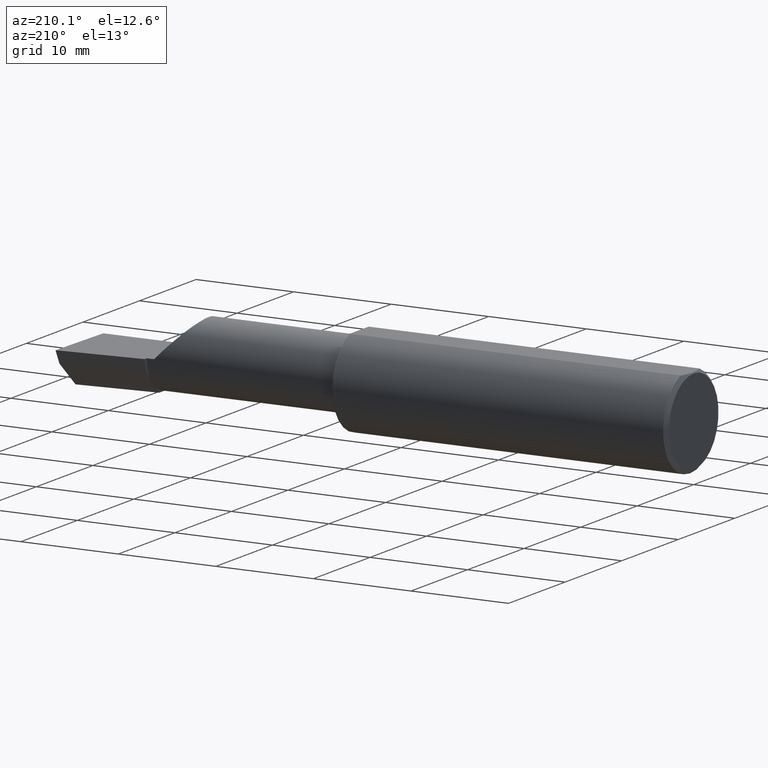
[diagram: clean part render]
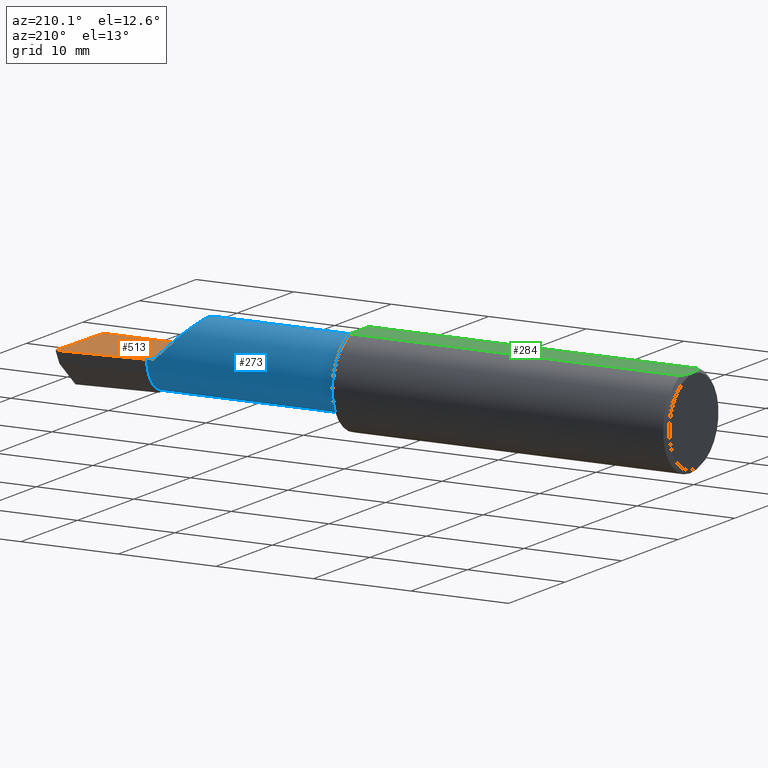
[diagram: same view with three faces highlighted in distinct colors, each labeled with its STEP entity id]
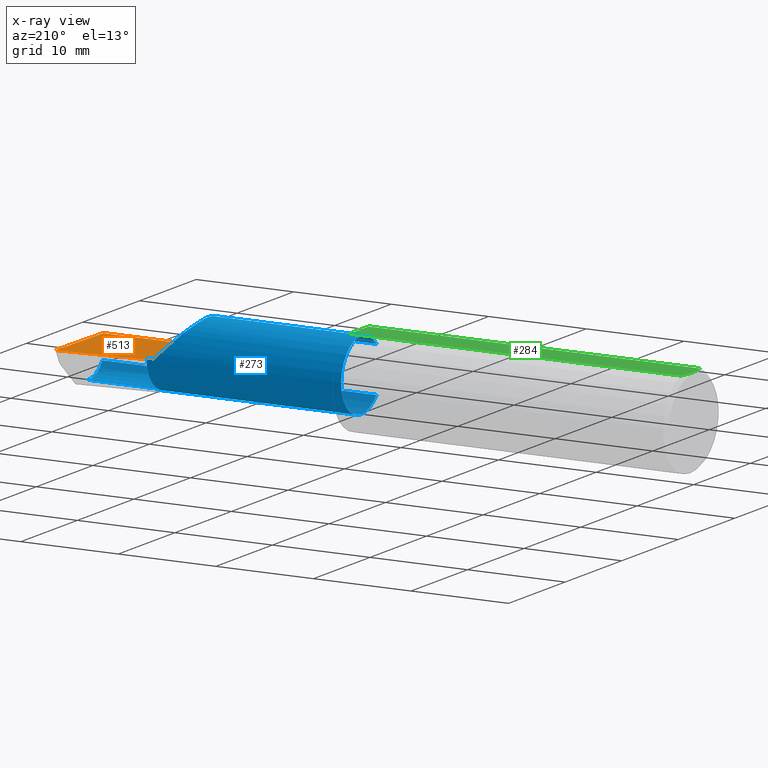
[diagram: x-ray of the same camera — body ghosted, the three highlighted faces saturated]
A machine part, auxiliary view with three faces highlighted in distinct colors.
The next image is the same camera in x-ray (body ghosted, the three faces saturated) — at least one of them is partly hidden behind the body in this view.
Their STEP definitions:

[orange] entity #513 — the highlighted planar face has unit normal (-0, 0, -1).
#4 = VECTOR ( 'NONE', #335, 39.37007874015748143 ) ;
#5 = CARTESIAN_POINT ( 'NONE',  ( 2.160000000000000142, -0.2500000000000000555, 1.034430765243970311E-16 ) ) ;
#10 = LINE ( 'NONE', #5, #608 ) ;
#27 = VECTOR ( 'NONE', #503, 39.37007874015748854 ) ;
#49 = EDGE_CURVE ( 'NONE', #288, #395, #148, .T. ) ;
#54 = CARTESIAN_POINT ( 'NONE',  ( 2.160000000000000142, 0.09791172361284175563, 3.308097179827818849E-16 ) ) ;
#58 = VERTEX_POINT ( 'NONE', #526 ) ;
#63 = ORIENTED_EDGE ( 'NONE', *, *, #49, .F. ) ;
#69 = ORIENTED_EDGE ( 'NONE', *, *, #507, .F. ) ;
#117 = LINE ( 'NONE', #308, #27 ) ;
#148 = LINE ( 'NONE', #281, #4 ) ;
#155 = VECTOR ( 'NONE', #174, 39.37007874015748143 ) ;
#174 = DIRECTION ( 'NONE',  ( -0.000000000000000000, 1.000000000000000000, -0.000000000000000000 ) ) ;
#185 = DIRECTION ( 'NONE',  ( -1.033731667140896077E-16, 0.000000000000000000, -1.000000000000000000 ) ) ;
#192 = CARTESIAN_POINT ( 'NONE',  ( 2.500000000000000000, -0.2500000000000000555, 6.829619984160658046E-17 ) ) ;
#202 = VECTOR ( 'NONE', #618, 39.37007874015748143 ) ;
#205 = LINE ( 'NONE', #571, #268 ) ;
#215 = LINE ( 'NONE', #369, #155 ) ;
#223 = CARTESIAN_POINT ( 'NONE',  ( 2.129999999999999893, -0.1873499999999999888, 1.065442715258197396E-16 ) ) ;
#233 = ORIENTED_EDGE ( 'NONE', *, *, #289, .F. ) ;
#237 = CARTESIAN_POINT ( 'NONE',  ( 2.160000000000000142, 0.08265000000000004288, 3.267291166268306182E-16 ) ) ;
#268 = VECTOR ( 'NONE', #345, 39.37007874015748143 ) ;
#278 = DIRECTION ( 'NONE',  ( -1.000000000000000000, 0.000000000000000000, 1.033731667140896077E-16 ) ) ;
#281 = CARTESIAN_POINT ( 'NONE',  ( 3.377502344341257155E-32, -0.1873499999999999610, 3.267291166268304703E-16 ) ) ;
#288 = VERTEX_POINT ( 'NONE', #501 ) ;
#289 = EDGE_CURVE ( 'NONE', #565, #303, #10, .T. ) ;
#303 = VERTEX_POINT ( 'NONE', #54 ) ;
#308 = CARTESIAN_POINT ( 'NONE',  ( 2.490039159128059953, -0.2497391662021650194, 6.932588350567417155E-17 ) ) ;
#335 = DIRECTION ( 'NONE',  ( -1.000000000000000000, -0.000000000000000000, -0.000000000000000000 ) ) ;
#341 = LINE ( 'NONE', #584, #202 ) ;
#344 = AXIS2_PLACEMENT_3D ( 'NONE', #192, #185, #278 ) ;
#345 = DIRECTION ( 'NONE',  ( 0.9953961983671787417, 0.09584575252022459191, -1.028972571603813720E-16 ) ) ;
#369 = CARTESIAN_POINT ( 'NONE',  ( 2.129999999999999893, -0.2500000000000000555, 1.065442715258197396E-16 ) ) ;
#370 = ORIENTED_EDGE ( 'NONE', *, *, #392, .F. ) ;
#392 = EDGE_CURVE ( 'NONE', #395, #527, #215, .T. ) ;
#395 = VERTEX_POINT ( 'NONE', #223 ) ;
#445 = ORIENTED_EDGE ( 'NONE', *, *, #481, .T. ) ;
#454 = ORIENTED_EDGE ( 'NONE', *, *, #574, .F. ) ;
#481 = EDGE_CURVE ( 'NONE', #288, #58, #117, .T. ) ;
#501 = CARTESIAN_POINT ( 'NONE',  ( 2.491672876940991710, -0.1873499999999999888, 6.915950918908297591E-17 ) ) ;
#503 = DIRECTION ( 'NONE',  ( 0.02617694830779364323, 0.9996573249755593693, -2.665804247635780349E-18 ) ) ;
#507 = EDGE_CURVE ( 'NONE', #303, #58, #205, .T. ) ;
#513 = ADVANCED_FACE ( 'NONE', ( #539 ), #626, .F. ) ;
#526 = CARTESIAN_POINT ( 'NONE',  ( 2.499999999999978684, 0.1306500000000238582, 8.403660643088248419E-14 ) ) ;
#527 = VERTEX_POINT ( 'NONE', #616 ) ;
#539 = FACE_OUTER_BOUND ( 'NONE', #552, .T. ) ;
#552 = EDGE_LOOP ( 'NONE', ( #63, #445, #69, #233, #454, #370 ) ) ;
#565 = VERTEX_POINT ( 'NONE', #237 ) ;
#571 = CARTESIAN_POINT ( 'NONE',  ( 0.5470260790800316464, -0.05740000000000000657, 2.701812985571356346E-16 ) ) ;
#574 = EDGE_CURVE ( 'NONE', #527, #565, #341, .T. ) ;
#582 = DIRECTION ( 'NONE',  ( -6.829619984160658816E-18, 1.000000000000000000, 7.059994452165177242E-34 ) ) ;
#584 = CARTESIAN_POINT ( 'NONE',  ( -9.564882787816662316E-19, 0.08264999999999995961, 3.267291166268304703E-16 ) ) ;
#608 = VECTOR ( 'NONE', #582, 39.37007874015748143 ) ;
#616 = CARTESIAN_POINT ( 'NONE',  ( 2.129999999999999893, 0.08264999999999983471, 1.065442715258197396E-16 ) ) ;
#618 = DIRECTION ( 'NONE',  ( 1.000000000000000000, 6.829619984160658046E-18, 0.000000000000000000 ) ) ;
#626 = PLANE ( 'NONE',  #344 ) ;

[blue] entity #273 — the highlighted cylindrical surface (partial cylindrical patch) has radius 3.5573 mm, axis along (-1, -0, -0).
#1 = CARTESIAN_POINT ( 'NONE',  ( 1.375000000000000000, -0.05740000000000000657, 0.000000000000000000 ) ) ;
#2 = EDGE_CURVE ( 'NONE', #565, #398, #52, .T. ) ;
#8 = ORIENTED_EDGE ( 'NONE', *, *, #126, .F. ) ;
#15 = CARTESIAN_POINT ( 'NONE',  ( 2.481080296960508580, -0.1635956445993030639, -0.09130436773856169530 ) ) ;
#20 = CARTESIAN_POINT ( 'NONE',  ( 2.160000000000000142, -0.05739999999999999963, -0.1400500000000000633 ) ) ;
#29 = ORIENTED_EDGE ( 'NONE', *, *, #114, .F. ) ;
#31 = ORIENTED_EDGE ( 'NONE', *, *, #32, .F. ) ;
#32 = EDGE_CURVE ( 'NONE', #538, #379, #523, .T. ) ;
#34 = CARTESIAN_POINT ( 'NONE',  ( 2.160000000000000142, -0.05739999999999999963, 0.000000000000000000 ) ) ;
#35 = LINE ( 'NONE', #388, #362 ) ;
#46 = CIRCLE ( 'NONE', #325, 0.1400500000000000356 ) ;
#50 = CARTESIAN_POINT ( 'NONE',  ( 2.476787929832031221, -0.09887019258091189755, -0.1400500000000000078 ) ) ;
#51 = DIRECTION ( 'NONE',  ( -1.000000000000000000, -6.829619984160658046E-18, -0.000000000000000000 ) ) ;
#52 = CIRCLE ( 'NONE', #406, 0.1400500000000000356 ) ;
#57 = CYLINDRICAL_SURFACE ( 'NONE', #525, 0.1400499999999999801 ) ;
#100 = ORIENTED_EDGE ( 'NONE', *, *, #621, .T. ) ;
#102 = CARTESIAN_POINT ( 'NONE',  ( 2.477873865042410806, -0.05739999999999999963, -0.1400500000000000633 ) ) ;
#106 = EDGE_LOOP ( 'NONE', ( #29, #541, #8, #100, #586, #144, #613, #620, #502, #31 ) ) ;
#114 = EDGE_CURVE ( 'NONE', #175, #538, #337, .T. ) ;
#122 = CARTESIAN_POINT ( 'NONE',  ( 2.160000000000000142, -0.05739999999999999963, 0.000000000000000000 ) ) ;
#126 = EDGE_CURVE ( 'NONE', #488, #607, #568, .T. ) ;
#131 = DIRECTION ( 'NONE',  ( 0.000000000000000000, -1.000000000000000000, 0.000000000000000000 ) ) ;
#143 = CARTESIAN_POINT ( 'NONE',  ( 2.500000000000000000, -0.05739999999999999963, -0.1400500000000000633 ) ) ;
#144 = ORIENTED_EDGE ( 'NONE', *, *, #574, .T. ) ;
#158 = CARTESIAN_POINT ( 'NONE',  ( 1.375000000000000000, -0.1635956445993029251, -0.09130436773856182020 ) ) ;
#166 = CARTESIAN_POINT ( 'NONE',  ( 1.921229036482944075, -0.06260079402492431389, 0.2087709635170537925 ) ) ;
#169 = DIRECTION ( 'NONE',  ( 0.000000000000000000, -1.000000000000000000, 0.000000000000000000 ) ) ;
#175 = VERTEX_POINT ( 'NONE', #15 ) ;
#178 = CARTESIAN_POINT ( 'NONE',  ( 1.975085956200449022, 0.08264999999999997349, 0.1549140437995493169 ) ) ;
#186 = CARTESIAN_POINT ( 'NONE',  ( 2.481080296960508580, -0.1635956445993030639, -0.09130436773856169530 ) ) ;
#202 = VECTOR ( 'NONE', #618, 39.37007874015748143 ) ;
#203 = CARTESIAN_POINT ( 'NONE',  ( 2.038695632261437130, -0.1635956445993029529, 0.09130436773856188959 ) ) ;
#212 = DIRECTION ( 'NONE',  ( -1.000000000000000000, -6.829619984160658046E-18, -0.000000000000000000 ) ) ;
#230 = DIRECTION ( 'NONE',  ( -1.000000000000000000, -6.829619984160658046E-18, -0.000000000000000000 ) ) ;
#237 = CARTESIAN_POINT ( 'NONE',  ( 2.160000000000000142, 0.08265000000000004288, 3.267291166268306182E-16 ) ) ;
#240 = DIRECTION ( 'NONE',  ( -1.000000000000000000, -6.829619984160658046E-18, -0.000000000000000000 ) ) ;
#259 = VERTEX_POINT ( 'NONE', #540 ) ;
#264 = CARTESIAN_POINT ( 'NONE',  ( 1.375000000000000000, -0.1635956445993028141, 0.09130436773856194510 ) ) ;
#273 = ADVANCED_FACE ( 'NONE', ( #446 ), #57, .T. ) ;
#306 = CARTESIAN_POINT ( 'NONE',  ( 1.767500000000000293, -0.1635956445993030639, 0.09130436773856169530 ) ) ;
#318 = VERTEX_POINT ( 'NONE', #203 ) ;
#325 = AXIS2_PLACEMENT_3D ( 'NONE', #456, #358, #410 ) ;
#326 = DIRECTION ( 'NONE',  ( 0.000000000000000000, -1.000000000000000000, 0.000000000000000000 ) ) ;
#329 = EDGE_CURVE ( 'NONE', #318, #527, #487, .T. ) ;
#337 =( BOUNDED_CURVE ( )  B_SPLINE_CURVE ( 3, ( #186, #528, #50, #477 ),
 .UNSPECIFIED., .F., .T. ) 
 B_SPLINE_CURVE_WITH_KNOTS ( ( 4, 4 ),
 ( 5.632580117768154260, 6.493234751459282528 ),
 .UNSPECIFIED. ) 
 CURVE ( )  GEOMETRIC_REPRESENTATION_ITEM ( )  RATIONAL_B_SPLINE_CURVE ( ( 1.000000000000000000, 0.9392195014330942948, 0.9392195014330942948, 1.000000000000000000 ) ) 
 REPRESENTATION_ITEM ( '' )  );
#341 = LINE ( 'NONE', #584, #202 ) ;
#354 = AXIS2_PLACEMENT_3D ( 'NONE', #1, #51, #326 ) ;
#358 = DIRECTION ( 'NONE',  ( -1.000000000000000000, -6.829619984160658046E-18, -0.000000000000000000 ) ) ;
#362 = VECTOR ( 'NONE', #240, 39.37007874015748143 ) ;
#379 = VERTEX_POINT ( 'NONE', #20 ) ;
#388 = CARTESIAN_POINT ( 'NONE',  ( 1.767500000000000293, -0.1635956445993030639, -0.09130436773856169530 ) ) ;
#398 = VERTEX_POINT ( 'NONE', #561 ) ;
#401 = DIRECTION ( 'NONE',  ( 6.829619984160658816E-18, -1.000000000000000000, 0.000000000000000000 ) ) ;
#402 = EDGE_CURVE ( 'NONE', #259, #398, #589, .T. ) ;
#406 = AXIS2_PLACEMENT_3D ( 'NONE', #34, #230, #131 ) ;
#410 = DIRECTION ( 'NONE',  ( 0.000000000000000000, -1.000000000000000000, 0.000000000000000000 ) ) ;
#413 = CARTESIAN_POINT ( 'NONE',  ( 2.038695632261437130, -0.1635956445993029529, 0.09130436773856188959 ) ) ;
#424 = EDGE_CURVE ( 'NONE', #259, #379, #46, .T. ) ;
#436 = VECTOR ( 'NONE', #580, 39.37007874015748143 ) ;
#446 = FACE_OUTER_BOUND ( 'NONE', #106, .T. ) ;
#450 = CARTESIAN_POINT ( 'NONE',  ( 0.000000000000000000, -0.05740000000000001351, 0.000000000000000000 ) ) ;
#456 = CARTESIAN_POINT ( 'NONE',  ( 2.160000000000000142, -0.05739999999999999963, 0.000000000000000000 ) ) ;
#467 = DIRECTION ( 'NONE',  ( 1.000000000000000000, 6.829619984160658046E-18, 0.000000000000000000 ) ) ;
#477 = CARTESIAN_POINT ( 'NONE',  ( 2.477873865042410806, -0.05739999999999999963, -0.1400500000000000633 ) ) ;
#487 =( BOUNDED_CURVE ( )  B_SPLINE_CURVE ( 3, ( #413, #166, #178, #602 ),
 .UNSPECIFIED., .F., .F. ) 
 B_SPLINE_CURVE_WITH_KNOTS ( ( 4, 4 ),
 ( 5.422530673488458852, 7.853981633974482790 ),
 .UNSPECIFIED. ) 
 CURVE ( )  GEOMETRIC_REPRESENTATION_ITEM ( )  RATIONAL_B_SPLINE_CURVE ( ( 1.000000000000000000, 0.5651045289226863666, 0.5651045289226863666, 1.000000000000000000 ) ) 
 REPRESENTATION_ITEM ( '' )  );
#488 = VERTEX_POINT ( 'NONE', #264 ) ;
#502 = ORIENTED_EDGE ( 'NONE', *, *, #424, .T. ) ;
#505 = LINE ( 'NONE', #306, #614 ) ;
#523 = LINE ( 'NONE', #143, #436 ) ;
#525 = AXIS2_PLACEMENT_3D ( 'NONE', #450, #212, #401 ) ;
#527 = VERTEX_POINT ( 'NONE', #616 ) ;
#528 = CARTESIAN_POINT ( 'NONE',  ( 2.477925907309857401, -0.1365595166907236646, -0.1227499502647107360 ) ) ;
#531 = EDGE_CURVE ( 'NONE', #175, #607, #35, .T. ) ;
#538 = VERTEX_POINT ( 'NONE', #102 ) ;
#540 = CARTESIAN_POINT ( 'NONE',  ( 2.160000000000000142, 0.01441505128072300204, -0.1202356058309979880 ) ) ;
#541 = ORIENTED_EDGE ( 'NONE', *, *, #531, .T. ) ;
#561 = CARTESIAN_POINT ( 'NONE',  ( 2.160000000000000142, 0.06495571228477943493, -0.06814016562413294231 ) ) ;
#565 = VERTEX_POINT ( 'NONE', #237 ) ;
#568 = CIRCLE ( 'NONE', #354, 0.1400499999999999245 ) ;
#574 = EDGE_CURVE ( 'NONE', #527, #565, #341, .T. ) ;
#580 = DIRECTION ( 'NONE',  ( -1.000000000000000000, 5.691349986800549142E-18, -0.000000000000000000 ) ) ;
#584 = CARTESIAN_POINT ( 'NONE',  ( -9.564882787816662316E-19, 0.08264999999999995961, 3.267291166268304703E-16 ) ) ;
#586 = ORIENTED_EDGE ( 'NONE', *, *, #329, .T. ) ;
#589 = CIRCLE ( 'NONE', #622, 0.1400499999999999801 ) ;
#602 = CARTESIAN_POINT ( 'NONE',  ( 2.129999999999999893, 0.08264999999999983471, 1.065442715258197396E-16 ) ) ;
#604 = DIRECTION ( 'NONE',  ( 1.000000000000000000, 6.829619984160658046E-18, 0.000000000000000000 ) ) ;
#607 = VERTEX_POINT ( 'NONE', #158 ) ;
#613 = ORIENTED_EDGE ( 'NONE', *, *, #2, .T. ) ;
#614 = VECTOR ( 'NONE', #604, 39.37007874015748143 ) ;
#616 = CARTESIAN_POINT ( 'NONE',  ( 2.129999999999999893, 0.08264999999999983471, 1.065442715258197396E-16 ) ) ;
#618 = DIRECTION ( 'NONE',  ( 1.000000000000000000, 6.829619984160658046E-18, 0.000000000000000000 ) ) ;
#620 = ORIENTED_EDGE ( 'NONE', *, *, #402, .F. ) ;
#621 = EDGE_CURVE ( 'NONE', #488, #318, #505, .T. ) ;
#622 = AXIS2_PLACEMENT_3D ( 'NONE', #122, #467, #169 ) ;

[green] entity #284 — the highlighted planar face has unit normal (0, -0, -1).
#16 = EDGE_LOOP ( 'NONE', ( #603, #275, #510, #305, #207 ) ) ;
#30 = LINE ( 'NONE', #225, #219 ) ;
#33 = VECTOR ( 'NONE', #134, 39.37007874015748143 ) ;
#36 = VERTEX_POINT ( 'NONE', #385 ) ;
#67 = EDGE_CURVE ( 'NONE', #124, #271, #400, .T. ) ;
#68 = PLANE ( 'NONE',  #94 ) ;
#74 = VERTEX_POINT ( 'NONE', #433 ) ;
#92 = CARTESIAN_POINT ( 'NONE',  ( 0.003000000000000218638, 2.334609556160449697E-17, 0.1753499999999999781 ) ) ;
#94 = AXIS2_PLACEMENT_3D ( 'NONE', #444, #108, #304 ) ;
#105 = EDGE_CURVE ( 'NONE', #74, #36, #482, .T. ) ;
#108 = DIRECTION ( 'NONE',  ( 0.000000000000000000, -1.438723400918613551E-16, -1.000000000000000000 ) ) ;
#119 = VECTOR ( 'NONE', #429, 39.37007874015748143 ) ;
#124 = VERTEX_POINT ( 'NONE', #92 ) ;
#130 = CARTESIAN_POINT ( 'NONE',  ( 0.01499999999999997863, -0.06597272163553657975, 0.1753499999999999781 ) ) ;
#134 = DIRECTION ( 'NONE',  ( 6.829619984160658046E-18, -1.000000000000000000, 1.438723400918613551E-16 ) ) ;
#141 = CARTESIAN_POINT ( 'NONE',  ( 0.000000000000000000, -0.06597272163553657975, 0.1753499999999999781 ) ) ;
#146 = CARTESIAN_POINT ( 'NONE',  ( 0.008244775919947424855, 0.04453482769755855164, 0.1753499999999999504 ) ) ;
#190 = CARTESIAN_POINT ( 'NONE',  ( 0.003000000000000218638, 2.334609556160449697E-17, 0.1753499999999999781 ) ) ;
#200 = B_SPLINE_CURVE_WITH_KNOTS ( 'NONE', 3,
 ( #386, #258, #346, #301, #206, #548 ),
 .UNSPECIFIED., .F., .F.,
 ( 4, 2, 4 ),
 ( 0.001779942938356815062, 0.002629978419973711019, 0.003480013901590607410 ),
 .UNSPECIFIED. ) ;
#206 = CARTESIAN_POINT ( 'NONE',  ( 0.003000000000000172667, -0.01126410975715121283, 0.1753500000000000059 ) ) ;
#207 = ORIENTED_EDGE ( 'NONE', *, *, #546, .F. ) ;
#219 = VECTOR ( 'NONE', #228, 39.37007874015748143 ) ;
#225 = CARTESIAN_POINT ( 'NONE',  ( 0.000000000000000000, 0.06597272163553663527, 0.1753499999999999781 ) ) ;
#228 = DIRECTION ( 'NONE',  ( 1.000000000000000000, 0.000000000000000000, 0.000000000000000000 ) ) ;
#241 = CARTESIAN_POINT ( 'NONE',  ( 0.004115035183746292881, 0.02255629470626744487, 0.1753499999999999781 ) ) ;
#245 = EDGE_CURVE ( 'NONE', #468, #124, #200, .T. ) ;
#250 = FACE_OUTER_BOUND ( 'NONE', #16, .T. ) ;
#253 = CARTESIAN_POINT ( 'NONE',  ( 0.01499999999999999424, 0.06597272163553663527, 0.1753499999999999781 ) ) ;
#258 = CARTESIAN_POINT ( 'NONE',  ( 0.01128414053810044941, -0.05542038647445821781, 0.1753499999999999781 ) ) ;
#271 = VERTEX_POINT ( 'NONE', #253 ) ;
#275 = ORIENTED_EDGE ( 'NONE', *, *, #462, .F. ) ;
#284 = ADVANCED_FACE ( 'NONE', ( #250 ), #68, .F. ) ;
#301 = CARTESIAN_POINT ( 'NONE',  ( 0.004093196532652216939, -0.02240707710020816909, 0.1753499999999999504 ) ) ;
#304 = DIRECTION ( 'NONE',  ( 0.000000000000000000, 1.000000000000000000, -1.438723400918613551E-16 ) ) ;
#305 = ORIENTED_EDGE ( 'NONE', *, *, #245, .F. ) ;
#338 = CARTESIAN_POINT ( 'NONE',  ( 0.01499999999999999424, 0.06597272163553663527, 0.1753499999999999781 ) ) ;
#346 = CARTESIAN_POINT ( 'NONE',  ( 0.008227791779583789808, -0.04447712204611815878, 0.1753499999999999781 ) ) ;
#374 = CARTESIAN_POINT ( 'NONE',  ( 1.350000000000000089, 0.2373500000000000332, 0.1753499999999999504 ) ) ;
#385 = CARTESIAN_POINT ( 'NONE',  ( 1.350000000000000089, -0.06597272163553659363, 0.1753499999999999781 ) ) ;
#386 = CARTESIAN_POINT ( 'NONE',  ( 0.01499999999999997863, -0.06597272163553657975, 0.1753499999999999781 ) ) ;
#400 = B_SPLINE_CURVE_WITH_KNOTS ( 'NONE', 3,
 ( #190, #520, #241, #146, #480, #338 ),
 .UNSPECIFIED., .F., .F.,
 ( 4, 2, 4 ),
 ( 0.003480013901590607410, 0.004330767971208083697, 0.005181522040825559984 ),
 .UNSPECIFIED. ) ;
#429 = DIRECTION ( 'NONE',  ( -1.000000000000000000, -0.000000000000000000, -0.000000000000000000 ) ) ;
#433 = CARTESIAN_POINT ( 'NONE',  ( 1.350000000000000089, 0.06597272163553663527, 0.1753499999999999781 ) ) ;
#444 = CARTESIAN_POINT ( 'NONE',  ( 2.500000000000000000, 0.2373500000000000332, 0.1753499999999999504 ) ) ;
#462 = EDGE_CURVE ( 'NONE', #271, #74, #30, .T. ) ;
#468 = VERTEX_POINT ( 'NONE', #130 ) ;
#480 = CARTESIAN_POINT ( 'NONE',  ( 0.01125230581755086272, 0.05532998191409922023, 0.1753500000000000059 ) ) ;
#482 = LINE ( 'NONE', #374, #33 ) ;
#510 = ORIENTED_EDGE ( 'NONE', *, *, #67, .F. ) ;
#518 = LINE ( 'NONE', #141, #119 ) ;
#520 = CARTESIAN_POINT ( 'NONE',  ( 0.003000000000000169632, 0.01127363201155560934, 0.1753499999999999781 ) ) ;
#546 = EDGE_CURVE ( 'NONE', #36, #468, #518, .T. ) ;
#548 = CARTESIAN_POINT ( 'NONE',  ( 0.003000000000000218638, 2.334609556160449697E-17, 0.1753499999999999781 ) ) ;
#603 = ORIENTED_EDGE ( 'NONE', *, *, #105, .F. ) ;